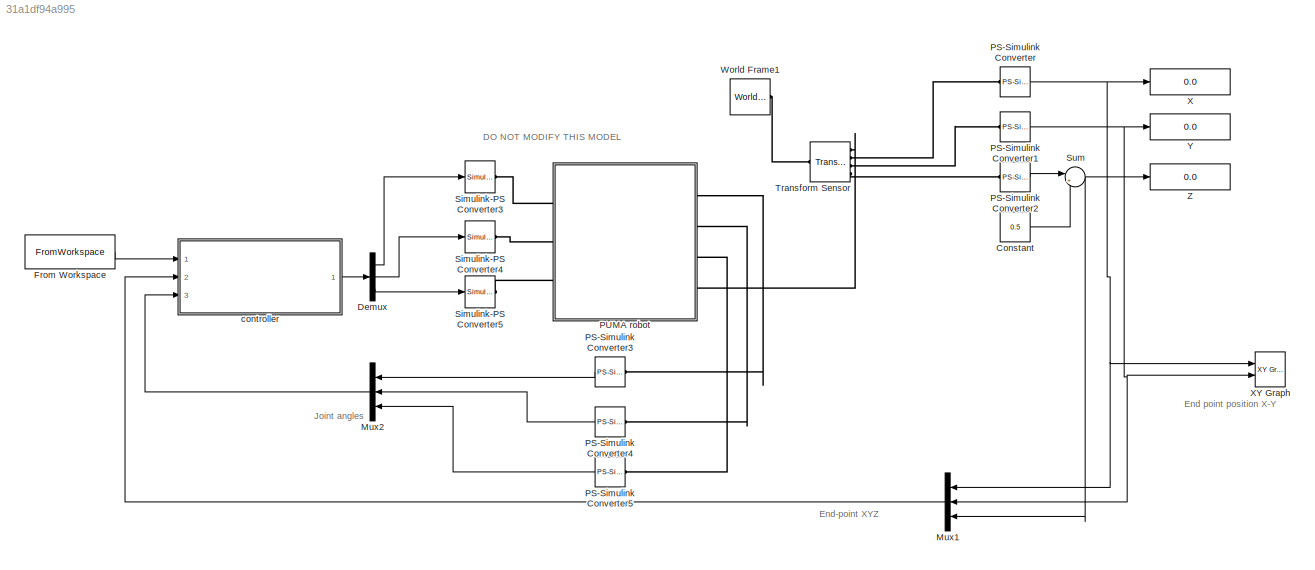
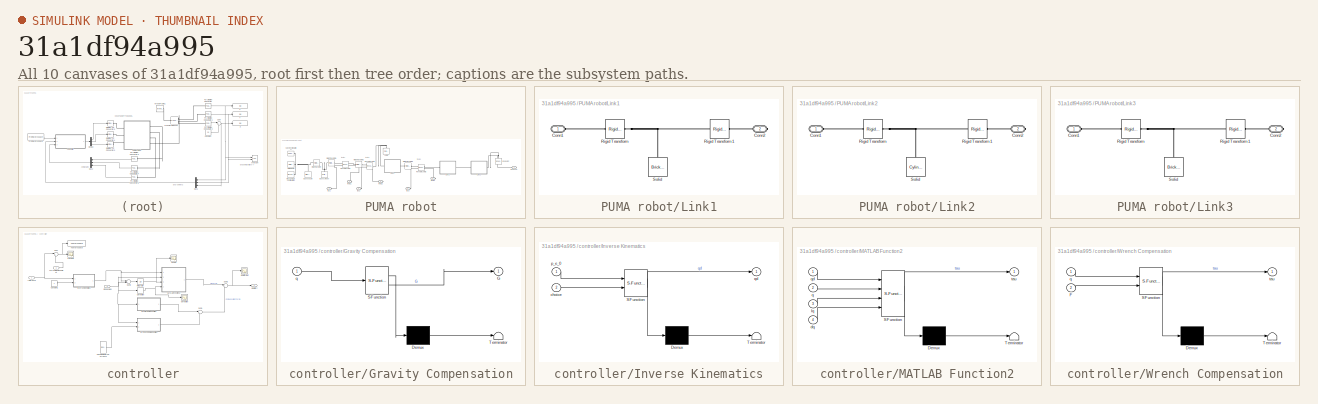
[diagram: thumbnail index - all 10 canvases of the model, root first then tree order]
MODEL slx_31a1df94a995
KIND model
CONFIG AbsTol = auto
CONFIG EnableMultiTasking = on
CONFIG FixedStep = 0.001
CONFIG MaxStep = 0.01
CONFIG MinStep = auto
CONFIG RelTol = 1e-3
CONFIG SampleTimeConstraint = Unconstrained
CONFIG Solver = ode5
CONFIG SolverName = ode5
CONFIG StartTime = 0.0
CONFIG StopTime = tf
BLOCK [Constant] Constant
  Value = 0.5
BLOCK [Demux] Demux
  Outputs = 3
  Ports = [1, 3]
BLOCK [FromWorkspace] From Workspace
  VariableName = xedyedzedsim
BLOCK [Mux] Mux1
  DisplayOption = bar
  Inputs = 3
  Ports = [3, 1]
BLOCK [Mux] Mux2
  DisplayOption = bar
  Inputs = 3
  Ports = [3, 1]
BLOCK [Reference] PS-Simulink Converter  REF=nesl_utility/PS-Simulink
Converter
  Ports = [0, 1, 0, 0, 0, 1]
  SourceBlock = nesl_utility/PS-Simulink\nConverter
  SourceProductBaseCode = SS
  SourceType = PS-Simulink\nConverter
BLOCK [Reference] PS-Simulink Converter1  REF=nesl_utility/PS-Simulink
Converter
  Ports = [0, 1, 0, 0, 0, 1]
  SourceBlock = nesl_utility/PS-Simulink\nConverter
  SourceProductBaseCode = SS
  SourceType = PS-Simulink\nConverter
BLOCK [Reference] PS-Simulink Converter2  REF=nesl_utility/PS-Simulink
Converter
  Ports = [0, 1, 0, 0, 0, 1]
  SourceBlock = nesl_utility/PS-Simulink\nConverter
  SourceProductBaseCode = SS
  SourceType = PS-Simulink\nConverter
BLOCK [Reference] PS-Simulink Converter3  REF=nesl_utility/PS-Simulink
Converter
  Ports = [0, 1, 0, 0, 0, 1]
  SourceBlock = nesl_utility/PS-Simulink\nConverter
  SourceProductBaseCode = SS
  SourceType = PS-Simulink\nConverter
BLOCK [Reference] PS-Simulink Converter4  REF=nesl_utility/PS-Simulink
Converter
  Ports = [0, 1, 0, 0, 0, 1]
  SourceBlock = nesl_utility/PS-Simulink\nConverter
  SourceProductBaseCode = SS
  SourceType = PS-Simulink\nConverter
BLOCK [Reference] PS-Simulink Converter5  REF=nesl_utility/PS-Simulink
Converter
  Ports = [0, 1, 0, 0, 0, 1]
  SourceBlock = nesl_utility/PS-Simulink\nConverter
  SourceProductBaseCode = SS
  SourceType = PS-Simulink\nConverter
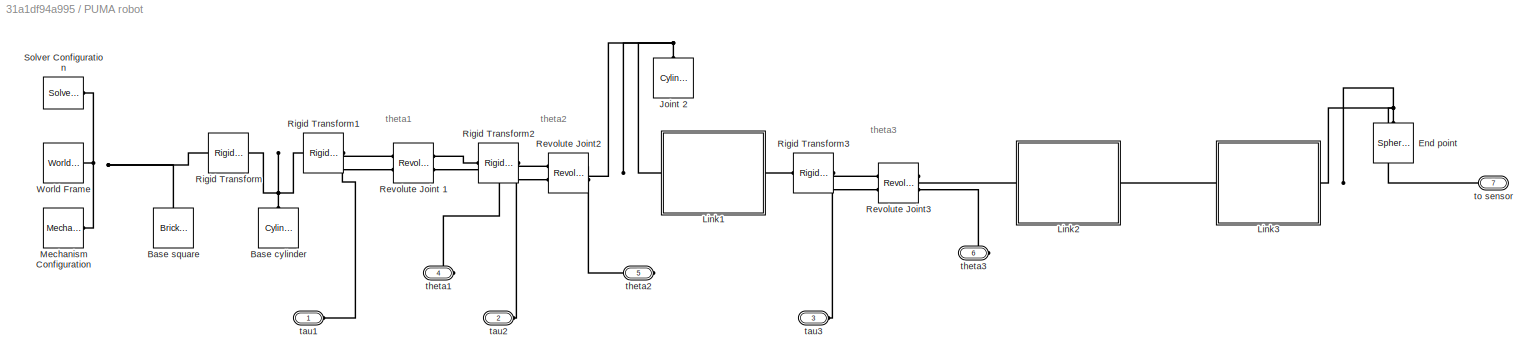
BLOCK [SubSystem] PUMA robot
  Ports = [0, 0, 0, 0, 0, 3, 4]
  RequestExecContextInheritance = off
BLOCK [Reference] PUMA robot/Base cylinder  REF=sm_lib/Body Elements/Cylindrical Solid
  NameLocation = right
  Ports = [0, 0, 0, 0, 0, 0, 1]
  SourceBlock = sm_lib/Body Elements/Cylindrical Solid
  SourceProductBaseCode = MS
  SourceType = Cylindrical Solid
BLOCK [Reference] PUMA robot/Base square  REF=sm_lib/Body Elements/Brick Solid
  NameLocation = right
  Ports = [0, 0, 0, 0, 0, 0, 1]
  SourceBlock = sm_lib/Body Elements/Brick Solid
  SourceProductBaseCode = MS
  SourceType = Brick Solid
BLOCK [Reference] PUMA robot/End point  REF=sm_lib/Body Elements/Spherical Solid
  NameLocation = right
  Ports = [0, 0, 0, 0, 0, 0, 1]
  SourceBlock = sm_lib/Body Elements/Spherical Solid
  SourceProductBaseCode = MS
  SourceType = Spherical Solid
BLOCK [Reference] PUMA robot/Joint 2  REF=sm_lib/Body Elements/Cylindrical Solid
  NameLocation = right
  Ports = [0, 0, 0, 0, 0, 0, 1]
  SourceBlock = sm_lib/Body Elements/Cylindrical Solid
  SourceProductBaseCode = MS
  SourceType = Cylindrical Solid
BLOCK [SubSystem] PUMA robot/Link1
  Ports = [0, 0, 0, 0, 0, 1, 1]
  RequestExecContextInheritance = off
BLOCK [PMIOPort] PUMA robot/Link1/Conn1
  Side = Left
BLOCK [PMIOPort] PUMA robot/Link1/Conn2
  Port = 2
  Side = Right
BLOCK [Reference] PUMA robot/Link1/Rigid Transform  REF=sm_lib/Frames and
Transforms/Rigid
Transform
  Ports = [0, 0, 0, 0, 0, 1, 1]
  SourceBlock = sm_lib/Frames and\nTransforms/Rigid\nTransform
  SourceProductBaseCode = MS
  SourceType = Rigid\nTransform
BLOCK [Reference] PUMA robot/Link1/Rigid Transform1  REF=sm_lib/Frames and
Transforms/Rigid
Transform
  Ports = [0, 0, 0, 0, 0, 1, 1]
  SourceBlock = sm_lib/Frames and\nTransforms/Rigid\nTransform
  SourceProductBaseCode = MS
  SourceType = Rigid\nTransform
BLOCK [Reference] PUMA robot/Link1/Solid  REF=sm_lib/Body Elements/Brick Solid
  NameLocation = right
  Ports = [0, 0, 0, 0, 0, 0, 1]
  SourceBlock = sm_lib/Body Elements/Brick Solid
  SourceProductBaseCode = MS
  SourceType = Brick Solid
BLOCK [SubSystem] PUMA robot/Link2
  Ports = [0, 0, 0, 0, 0, 1, 1]
  RequestExecContextInheritance = off
BLOCK [PMIOPort] PUMA robot/Link2/Conn1
  Side = Left
BLOCK [PMIOPort] PUMA robot/Link2/Conn2
  Port = 2
  Side = Right
BLOCK [Reference] PUMA robot/Link2/Rigid Transform  REF=sm_lib/Frames and
Transforms/Rigid
Transform
  Ports = [0, 0, 0, 0, 0, 1, 1]
  SourceBlock = sm_lib/Frames and\nTransforms/Rigid\nTransform
  SourceProductBaseCode = MS
  SourceType = Rigid\nTransform
BLOCK [Reference] PUMA robot/Link2/Rigid Transform1  REF=sm_lib/Frames and
Transforms/Rigid
Transform
  Ports = [0, 0, 0, 0, 0, 1, 1]
  SourceBlock = sm_lib/Frames and\nTransforms/Rigid\nTransform
  SourceProductBaseCode = MS
  SourceType = Rigid\nTransform
BLOCK [Reference] PUMA robot/Link2/Solid  REF=sm_lib/Body Elements/Cylindrical Solid
  NameLocation = right
  Ports = [0, 0, 0, 0, 0, 0, 1]
  SourceBlock = sm_lib/Body Elements/Cylindrical Solid
  SourceProductBaseCode = MS
  SourceType = Cylindrical Solid
BLOCK [SubSystem] PUMA robot/Link3
  Ports = [0, 0, 0, 0, 0, 1, 1]
  RequestExecContextInheritance = off
BLOCK [PMIOPort] PUMA robot/Link3/Conn1
  Side = Left
BLOCK [PMIOPort] PUMA robot/Link3/Conn2
  Port = 2
  Side = Right
BLOCK [Reference] PUMA robot/Link3/Rigid Transform  REF=sm_lib/Frames and
Transforms/Rigid
Transform
  Ports = [0, 0, 0, 0, 0, 1, 1]
  SourceBlock = sm_lib/Frames and\nTransforms/Rigid\nTransform
  SourceProductBaseCode = MS
  SourceType = Rigid\nTransform
BLOCK [Reference] PUMA robot/Link3/Rigid Transform1  REF=sm_lib/Frames and
Transforms/Rigid
Transform
  Ports = [0, 0, 0, 0, 0, 1, 1]
  SourceBlock = sm_lib/Frames and\nTransforms/Rigid\nTransform
  SourceProductBaseCode = MS
  SourceType = Rigid\nTransform
BLOCK [Reference] PUMA robot/Link3/Solid  REF=sm_lib/Body Elements/Brick Solid
  NameLocation = right
  Ports = [0, 0, 0, 0, 0, 0, 1]
  SourceBlock = sm_lib/Body Elements/Brick Solid
  SourceProductBaseCode = MS
  SourceType = Brick Solid
BLOCK [Reference] PUMA robot/Mechanism Configuration  REF=sm_lib/Utilities/Mechanism
Configuration
  Ports = [0, 0, 0, 0, 0, 0, 1]
  SourceBlock = sm_lib/Utilities/Mechanism\nConfiguration
  SourceProductBaseCode = MS
  SourceType = Mechanism\nConfiguration
BLOCK [Reference] PUMA robot/Revolute Joint 1  REF=sm_lib/Joints/Revolute Joint
  Ports = [0, 0, 0, 0, 0, 2, 2]
  SourceBlock = sm_lib/Joints/Revolute Joint
  SourceProductBaseCode = MS
  SourceType = Revolute Joint
BLOCK [Reference] PUMA robot/Revolute Joint2  REF=sm_lib/Joints/Revolute Joint
  Ports = [0, 0, 0, 0, 0, 2, 2]
  SourceBlock = sm_lib/Joints/Revolute Joint
  SourceProductBaseCode = MS
  SourceType = Revolute Joint
BLOCK [Reference] PUMA robot/Revolute Joint3  REF=sm_lib/Joints/Revolute Joint
  Ports = [0, 0, 0, 0, 0, 2, 2]
  SourceBlock = sm_lib/Joints/Revolute Joint
  SourceProductBaseCode = MS
  SourceType = Revolute Joint
BLOCK [Reference] PUMA robot/Rigid Transform  REF=sm_lib/Frames and
Transforms/Rigid
Transform
  Ports = [0, 0, 0, 0, 0, 1, 1]
  SourceBlock = sm_lib/Frames and\nTransforms/Rigid\nTransform
  SourceProductBaseCode = MS
  SourceType = Rigid\nTransform
BLOCK [Reference] PUMA robot/Rigid Transform1  REF=sm_lib/Frames and
Transforms/Rigid
Transform
  Ports = [0, 0, 0, 0, 0, 1, 1]
  SourceBlock = sm_lib/Frames and\nTransforms/Rigid\nTransform
  SourceProductBaseCode = MS
  SourceType = Rigid\nTransform
BLOCK [Reference] PUMA robot/Rigid Transform2  REF=sm_lib/Frames and
Transforms/Rigid
Transform
  Ports = [0, 0, 0, 0, 0, 1, 1]
  SourceBlock = sm_lib/Frames and\nTransforms/Rigid\nTransform
  SourceProductBaseCode = MS
  SourceType = Rigid\nTransform
BLOCK [Reference] PUMA robot/Rigid Transform3  REF=sm_lib/Frames and
Transforms/Rigid
Transform
  Ports = [0, 0, 0, 0, 0, 1, 1]
  SourceBlock = sm_lib/Frames and\nTransforms/Rigid\nTransform
  SourceProductBaseCode = MS
  SourceType = Rigid\nTransform
BLOCK [Reference] PUMA robot/Solver Configuration  REF=nesl_utility/Solver
Configuration
  Ports = [0, 0, 0, 0, 0, 0, 1]
  SourceBlock = nesl_utility/Solver\nConfiguration
  SourceProductBaseCode = SS
  SourceType = Solver\nConfiguration
BLOCK [Reference] PUMA robot/World Frame  REF=sm_lib/Frames and
Transforms/World Frame
  Ports = [0, 0, 0, 0, 0, 0, 1]
  SourceBlock = sm_lib/Frames and\nTransforms/World Frame
  SourceProductBaseCode = MS
  SourceType = World Frame
BLOCK [PMIOPort] PUMA robot/tau1
  Side = Left
BLOCK [PMIOPort] PUMA robot/tau2
  Port = 2
  Side = Left
BLOCK [PMIOPort] PUMA robot/tau3
  Port = 3
  Side = Left
BLOCK [PMIOPort] PUMA robot/theta1
  Port = 4
  Side = Right
BLOCK [PMIOPort] PUMA robot/theta2
  Port = 5
  Side = Right
BLOCK [PMIOPort] PUMA robot/theta3
  Port = 6
  Side = Right
BLOCK [PMIOPort] PUMA robot/to sensor
  Port = 7
  Side = Right
BLOCK [Reference] Simulink-PS Converter3  REF=nesl_utility/Simulink-PS
Converter
  Ports = [1, 0, 0, 0, 0, 0, 1]
  SourceBlock = nesl_utility/Simulink-PS\nConverter
  SourceProductBaseCode = SS
  SourceType = Simulink-PS\nConverter
BLOCK [Reference] Simulink-PS Converter4  REF=nesl_utility/Simulink-PS
Converter
  Ports = [1, 0, 0, 0, 0, 0, 1]
  SourceBlock = nesl_utility/Simulink-PS\nConverter
  SourceProductBaseCode = SS
  SourceType = Simulink-PS\nConverter
BLOCK [Reference] Simulink-PS Converter5  REF=nesl_utility/Simulink-PS
Converter
  Ports = [1, 0, 0, 0, 0, 0, 1]
  SourceBlock = nesl_utility/Simulink-PS\nConverter
  SourceProductBaseCode = SS
  SourceType = Simulink-PS\nConverter
BLOCK [Sum] Sum
  Inputs = |+-
  Ports = [2, 1]
BLOCK [Reference] Transform Sensor  REF=sm_lib/Frames and
Transforms/Transform
Sensor
  Ports = [0, 0, 0, 0, 0, 1, 4]
  SourceBlock = sm_lib/Frames and\nTransforms/Transform\nSensor
  SourceProductBaseCode = MS
  SourceType = Transform\nSensor
BLOCK [Reference] World Frame1  REF=sm_lib/Frames and
Transforms/World Frame
  Ports = [0, 0, 0, 0, 0, 0, 1]
  SourceBlock = sm_lib/Frames and\nTransforms/World Frame
  SourceProductBaseCode = MS
  SourceType = World Frame
BLOCK [Display] X
  Decimation = 1
  Ports = [1]
BLOCK [Reference] XY Graph  REF=simulink/Sinks/XY Graph
  Ports = [2]
  SourceBlock = simulink/Sinks/XY Graph
  SourceProductBaseCode = SL
  SourceType = XY scope.
BLOCK [Display] Y
  Decimation = 1
  Ports = [1]
BLOCK [Display] Z
  Decimation = 1
  Ports = [1]
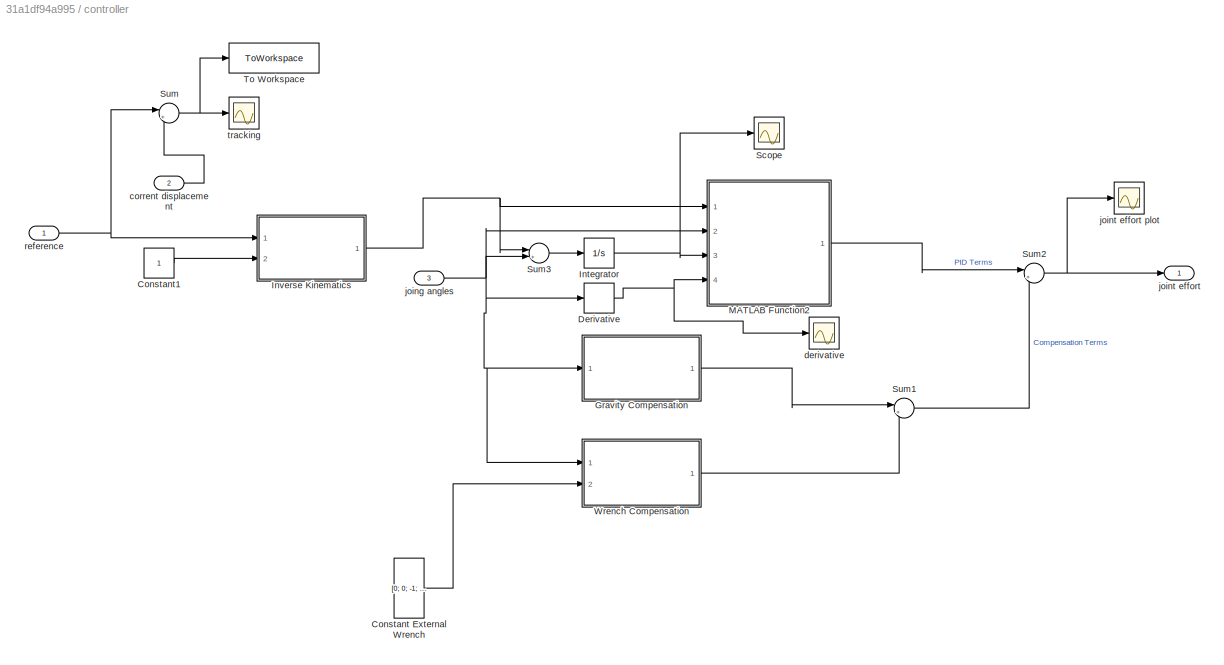
BLOCK [SubSystem] controller
  Ports = [3, 1]
  RequestExecContextInheritance = off
BLOCK [Constant] controller/Constant External Wrench
  Value = [0; 0; -1; 0; 1; 0]
BLOCK [Constant] controller/Constant1
BLOCK [Derivative] controller/Derivative
BLOCK [SubSystem] controller/Gravity Compensation
  ErrorFcn = Stateflow.Translate.translate
  PermitHierarchicalResolution = ExplicitOnly
  Ports = [1, 1]
  RequestExecContextInheritance = off
  SFBlockType = MATLAB Function
  TreatAsAtomicUnit = on
BLOCK [Demux] controller/Gravity Compensation/ Demux 
  Outputs = 1
  Ports = [1, 1]
BLOCK [S-Function] controller/Gravity Compensation/ SFunction 
  EnableBusSupport = on
  FunctionName = sf_sfun
  PortCounts = [1 2]
  Ports = [1, 2]
  SFcnIsStateOwnerBlock = off
  SFunctionDeploymentMode = off
  Tag = Stateflow S-Function 2
BLOCK [Terminator] controller/Gravity Compensation/ Terminator 
BLOCK [Outport] controller/Gravity Compensation/G
BLOCK [Inport] controller/Gravity Compensation/q
BLOCK [Integrator] controller/Integrator
  Ports = [1, 1]
BLOCK [SubSystem] controller/Inverse Kinematics
  ErrorFcn = Stateflow.Translate.translate
  PermitHierarchicalResolution = ExplicitOnly
  Ports = [2, 1]
  RequestExecContextInheritance = off
  SFBlockType = MATLAB Function
  TreatAsAtomicUnit = on
BLOCK [Demux] controller/Inverse Kinematics/ Demux 
  Outputs = 1
  Ports = [1, 1]
BLOCK [S-Function] controller/Inverse Kinematics/ SFunction 
  EnableBusSupport = on
  FunctionName = sf_sfun
  PortCounts = [2 2]
  Ports = [2, 2]
  SFcnIsStateOwnerBlock = off
  SFunctionDeploymentMode = off
  Tag = Stateflow S-Function 1
BLOCK [Terminator] controller/Inverse Kinematics/ Terminator 
BLOCK [Inport] controller/Inverse Kinematics/choice
  Port = 2
BLOCK [Inport] controller/Inverse Kinematics/p_e_0
BLOCK [Outport] controller/Inverse Kinematics/qd
BLOCK [SubSystem] controller/MATLAB Function2
  ErrorFcn = Stateflow.Translate.translate
  PermitHierarchicalResolution = ExplicitOnly
  Ports = [4, 1]
  RequestExecContextInheritance = off
  SFBlockType = MATLAB Function
  TreatAsAtomicUnit = on
BLOCK [Demux] controller/MATLAB Function2/ Demux 
  Outputs = 1
  Ports = [1, 1]
BLOCK [S-Function] controller/MATLAB Function2/ SFunction 
  EnableBusSupport = on
  FunctionName = sf_sfun
  PortCounts = [4 2]
  Ports = [4, 2]
  SFcnIsStateOwnerBlock = off
  SFunctionDeploymentMode = off
  Tag = Stateflow S-Function 5
BLOCK [Terminator] controller/MATLAB Function2/ Terminator 
BLOCK [Inport] controller/MATLAB Function2/Iq
  Port = 3
BLOCK [Inport] controller/MATLAB Function2/dq
  Port = 4
BLOCK [Inport] controller/MATLAB Function2/q
  Port = 2
BLOCK [Inport] controller/MATLAB Function2/qd
BLOCK [Outport] controller/MATLAB Function2/tau
BLOCK [Scope] controller/Scope
  Floating = off
  NumInputPorts = 1
  Ports = [1]
  ScopeSpecificationString = Simulink.scopes.TimeScopeBlockCfg('CurrentConfiguration', extmgr.ConfigurationSet(extmgr.Configuration('Core','General UI',true),extmgr.Configuration('Core','Source UI',true),extmgr.Configuration('Sources','WiredSimulink',true,'DataLoggingVariableName','ScopeData1'),extmgr.Configuration('Visuals','Time Domain',true,'SerializedDisplays',{struct('MinYLimReal','-0.02127','MaxYLimReal','0.02293','YLab...<+1413ch>
BLOCK [Sum] controller/Sum
  Inputs = |+-
  Ports = [2, 1]
BLOCK [Sum] controller/Sum1
  Inputs = |++
  Ports = [2, 1]
BLOCK [Sum] controller/Sum2
  Inputs = |++
  Ports = [2, 1]
BLOCK [Sum] controller/Sum3
  Inputs = |+-
  Ports = [2, 1]
BLOCK [ToWorkspace] controller/To Workspace
  FixptAsFi = on
  MaxDataPoints = inf
  Ports = [1]
  SampleTime = -1
  SaveFormat = Timeseries
  VariableName = errorTerm
BLOCK [SubSystem] controller/Wrench Compensation
  ErrorFcn = Stateflow.Translate.translate
  PermitHierarchicalResolution = ExplicitOnly
  Ports = [2, 1]
  RequestExecContextInheritance = off
  SFBlockType = MATLAB Function
  TreatAsAtomicUnit = on
BLOCK [Demux] controller/Wrench Compensation/ Demux 
  Outputs = 1
  Ports = [1, 1]
BLOCK [S-Function] controller/Wrench Compensation/ SFunction 
  EnableBusSupport = on
  FunctionName = sf_sfun
  PortCounts = [2 2]
  Ports = [2, 2]
  SFcnIsStateOwnerBlock = off
  SFunctionDeploymentMode = off
  Tag = Stateflow S-Function 4
BLOCK [Terminator] controller/Wrench Compensation/ Terminator 
BLOCK [Inport] controller/Wrench Compensation/F
  Port = 2
BLOCK [Inport] controller/Wrench Compensation/q
BLOCK [Outport] controller/Wrench Compensation/tau
BLOCK [Inport] controller/corrent displacement
  Port = 2
BLOCK [Scope] controller/derivative
  Floating = off
  NumInputPorts = 1
  Ports = [1]
  ScopeSpecificationString = Simulink.scopes.TimeScopeBlockCfg('CurrentConfiguration', extmgr.ConfigurationSet(extmgr.Configuration('Core','General UI',true),extmgr.Configuration('Core','Source UI',true),extmgr.Configuration('Sources','WiredSimulink',true,'DataLoggingVariableName','ScopeData1'),extmgr.Configuration('Visuals','Time Domain',true,'SerializedDisplays',{struct('MinYLimReal','-16.30946','MaxYLimReal','29.09693','YL...<+1395ch>
BLOCK [Inport] controller/joing angles
  Port = 3
BLOCK [Outport] controller/joint effort
  VectorParamsAs1DForOutWhenUnconnected = off
BLOCK [Scope] controller/joint effort plot 
  Floating = off
  NumInputPorts = 1
  Ports = [1]
  ScopeSpecificationString = Simulink.scopes.TimeScopeBlockCfg('CurrentConfiguration', extmgr.ConfigurationSet(extmgr.Configuration('Core','General UI',true),extmgr.Configuration('Core','Source UI',true),extmgr.Configuration('Sources','WiredSimulink',true,'DataLoggingVariableName','ScopeData1'),extmgr.Configuration('Visuals','Time Domain',true,'SerializedDisplays',{struct('MinYLimReal','-221.96048','MaxYLimReal','272.54867','...<+1474ch>
BLOCK [Inport] controller/reference
BLOCK [Scope] controller/tracking
  Floating = off
  NumInputPorts = 1
  Ports = [1]
  ScopeSpecificationString = Simulink.scopes.TimeScopeBlockCfg('CurrentConfiguration', extmgr.ConfigurationSet(extmgr.Configuration('Core','General UI',true),extmgr.Configuration('Core','Source UI',true),extmgr.Configuration('Sources','WiredSimulink',true,'DataLoggingVariableName','ScopeData2'),extmgr.Configuration('Visuals','Time Domain',true,'SerializedDisplays',{struct('MinYLimReal','-0.05564','MaxYLimReal','0.05526','YLab...<+1435ch>
ANNOTATION (root): DO NOT MODIFY THIS MODEL
ANNOTATION (root): End point position X-Y
ANNOTATION (root): End-point XYZ
ANNOTATION (root): Joint angles
ANNOTATION PUMA robot: theta1
ANNOTATION PUMA robot: theta2
ANNOTATION PUMA robot: theta3
LINE Constant:1 -> Sum:2
LINE Demux:1 -> Simulink-PS Converter3:1
LINE Demux:2 -> Simulink-PS Converter4:1
LINE Demux:3 -> Simulink-PS Converter5:1
LINE From Workspace:1 -> controller:1
LINE Mux1:1 -> controller:2
LINE Mux2:1 -> controller:3
NET PS-Simulink Converter1:1 -> Mux1:2, XY Graph:2, Y:1
LINE PS-Simulink Converter2:1 -> Sum:1
LINE PS-Simulink Converter3:1 -> Mux2:1
LINE PS-Simulink Converter4:1 -> Mux2:2
LINE PS-Simulink Converter5:1 -> Mux2:3
NET PS-Simulink Converter:1 -> Mux1:1, X:1, XY Graph:1
NET Sum:1 -> Mux1:3, Z:1
LINE controller/Constant External Wrench:1 -> controller/Wrench Compensation:2
LINE controller/Constant1:1 -> controller/Inverse Kinematics:2
NET controller/Derivative:1 -> controller/MATLAB Function2:4, controller/derivative:1
LINE controller/Gravity Compensation:1 -> controller/Sum1:1
NET controller/Integrator:1 -> controller/MATLAB Function2:3, controller/Scope:1
NET controller/Inverse Kinematics:1 -> controller/MATLAB Function2:1, controller/Sum3:1
LINE controller/MATLAB Function2:1 -> controller/Sum2:1
LINE controller/Sum1:1 -> controller/Sum2:2
NET controller/Sum2:1 -> controller/joint effort plot :1, controller/joint effort:1
LINE controller/Sum3:1 -> controller/Integrator:1
NET controller/Sum:1 -> controller/To Workspace:1, controller/tracking:1
LINE controller/Wrench Compensation:1 -> controller/Sum1:2
LINE controller/corrent displacement:1 -> controller/Sum:2
NET controller/joing angles:1 -> controller/Derivative:1, controller/Gravity Compensation:1, controller/MATLAB Function2:2, controller/Sum3:2, controller/Wrench Compensation:1
NET controller/reference:1 -> controller/Inverse Kinematics:1, controller/Sum:1
LINE controller:1 -> Demux:1
PLINE PS-Simulink Converter1:LConn1 -- Transform Sensor:RConn3
PLINE PS-Simulink Converter2:LConn1 -- Transform Sensor:RConn4
PLINE PS-Simulink Converter3:LConn1 -- PUMA robot:RConn1
PLINE PS-Simulink Converter4:LConn1 -- PUMA robot:RConn2
PLINE PS-Simulink Converter5:LConn1 -- PUMA robot:RConn3
PLINE PS-Simulink Converter:LConn1 -- Transform Sensor:RConn2
PNET net1: PUMA robot/Base cylinder:RConn1 -- PUMA robot/Rigid Transform1:LConn1 -- PUMA robot/Rigid Transform:RConn1
PNET net2: PUMA robot/Base square:RConn1 -- PUMA robot/Mechanism Configuration:RConn1 -- PUMA robot/Rigid Transform:LConn1 -- PUMA robot/Solver Configuration:RConn1 -- PUMA robot/World Frame:RConn1
PNET net3: PUMA robot/End point:RConn1 -- PUMA robot/Link3:RConn1 -- PUMA robot/to sensor:RConn1
PNET net4: PUMA robot/Joint 2:RConn1 -- PUMA robot/Link1:LConn1 -- PUMA robot/Revolute Joint2:RConn1
PLINE PUMA robot/Link1/Conn1:RConn1 -- PUMA robot/Link1/Rigid Transform:LConn1
PLINE PUMA robot/Link1/Conn2:RConn1 -- PUMA robot/Link1/Rigid Transform1:RConn1
PNET net5: PUMA robot/Link1/Rigid Transform1:LConn1 -- PUMA robot/Link1/Rigid Transform:RConn1 -- PUMA robot/Link1/Solid:RConn1
PLINE PUMA robot/Link1:RConn1 -- PUMA robot/Rigid Transform3:LConn1
PLINE PUMA robot/Link2/Conn1:RConn1 -- PUMA robot/Link2/Rigid Transform:LConn1
PLINE PUMA robot/Link2/Conn2:RConn1 -- PUMA robot/Link2/Rigid Transform1:RConn1
PNET net6: PUMA robot/Link2/Rigid Transform1:LConn1 -- PUMA robot/Link2/Rigid Transform:RConn1 -- PUMA robot/Link2/Solid:RConn1
PLINE PUMA robot/Link2:LConn1 -- PUMA robot/Revolute Joint3:RConn1
PLINE PUMA robot/Link2:RConn1 -- PUMA robot/Link3:LConn1
PLINE PUMA robot/Link3/Conn1:RConn1 -- PUMA robot/Link3/Rigid Transform:LConn1
PLINE PUMA robot/Link3/Conn2:RConn1 -- PUMA robot/Link3/Rigid Transform1:RConn1
PNET net7: PUMA robot/Link3/Rigid Transform1:LConn1 -- PUMA robot/Link3/Rigid Transform:RConn1 -- PUMA robot/Link3/Solid:RConn1
PLINE PUMA robot/Revolute Joint 1:LConn1 -- PUMA robot/Rigid Transform1:RConn1
PLINE PUMA robot/Revolute Joint 1:LConn2 -- PUMA robot/tau1:RConn1
PLINE PUMA robot/Revolute Joint 1:RConn1 -- PUMA robot/Rigid Transform2:LConn1
PLINE PUMA robot/Revolute Joint 1:RConn2 -- PUMA robot/theta1:RConn1
PLINE PUMA robot/Revolute Joint2:LConn1 -- PUMA robot/Rigid Transform2:RConn1
PLINE PUMA robot/Revolute Joint2:LConn2 -- PUMA robot/tau2:RConn1
PLINE PUMA robot/Revolute Joint2:RConn2 -- PUMA robot/theta2:RConn1
PLINE PUMA robot/Revolute Joint3:LConn1 -- PUMA robot/Rigid Transform3:RConn1
PLINE PUMA robot/Revolute Joint3:LConn2 -- PUMA robot/tau3:RConn1
PLINE PUMA robot/Revolute Joint3:RConn2 -- PUMA robot/theta3:RConn1
PLINE PUMA robot:LConn1 -- Simulink-PS Converter3:RConn1
PLINE PUMA robot:LConn2 -- Simulink-PS Converter4:RConn1
PLINE PUMA robot:LConn3 -- Simulink-PS Converter5:RConn1
PLINE PUMA robot:RConn4 -- Transform Sensor:RConn1
PLINE Transform Sensor:LConn1 -- World Frame1:RConn1
note: NET lines group one-source signal fan-out (src -> all destinations, sorted); 1:1 wires keep LINE; PNET lines group multi-terminal physical nets as a canonical sorted terminal list (undirected conserving connections); 2-terminal nets keep the pairwise PLINE form
CHART controller/Inverse Kinematics states=1 transitions=1
  STATE_LABEL 'eML_blk_kernel()'
  STATE_LABEL 'SCRIPT:\nfunction qd  = IK_puma(p_e_0, choice)\n    la = 1;\n    lb = 0.2;\n    lc = 1;\n    % Initialize output\n    q = zeros(3, 4);\n    rx = p_e_0(1);\n    ry = p_e_0(2);\n    rz = p_e_0(3);\n    % Find theta1\n    theta1_1 = atan2(-rx, ry) + atan2(sqrt(rx^2 + ry^2 - lb^2), lb);\n    theta1_2 = atan2(-rx, ry) - atan2(sqrt(rx^2 + ry^2 - lb^2), lb);\n    % Find theta3\n    k = sqrt((rx^2 + ry^2 + rz^2 - lb^2 ...<+1222ch>'
CHART controller/Gravity Compensation states=1 transitions=1
  STATE_LABEL 'eML_blk_kernel()'
  STATE_LABEL 'SCRIPT:\nfunction G = gravityVector(q)\n    G = zeros(3, 1);\n    G(2) = -4.905 * (76.042 * cos(q(2)) + 23.462 * cos(q(2) + q(3)));\n    G(3) = -115.081 * cos(q(2) + q(3));\nend\n'
CHART controller/Wrench Compensation states=1 transitions=1
  STATE_LABEL 'eML_blk_kernel()'
  STATE_LABEL 'SCRIPT:\nfunction tau = wrenchComp(q, F)\n    % Find Jacobian\n    J = zeros(6, 3); % Determine Size\n    % Robot Parameters\n    la = 1;\n    lb = 0.2;\n    lc = 1;\n    % Configuration decomposition: input q is in RADIANS!!!!!!!!\n    o1 = rad2deg(q(1));\n    o2 = rad2deg(q(2));\n    o3 = rad2deg(q(3));\n    % HTMs\n    T01 = [rotz(o1), zeros(3, 1); zeros(1, 3), 1];\n    T12 = [rotx(-90) * rotz(o2), zeros(3, ...<+668ch>'
CHART controller/MATLAB Function2 states=1 transitions=1
  STATE_LABEL 'eML_blk_kernel()'
  STATE_LABEL 'SCRIPT:\nfunction tau = PID(qd, q, Iq, dq)\n    % Gains\n    Kp = diag([3000 * 10, 4000 * 10, 3000 * 10]);\n    KI = diag([1, 1, 1]) * 0;\n    Kd = diag([300 * 1.8 450 * 1.8 300 * 1.8]);\n    tau = Kp * (qd -q) + KI * Iq + Kd * (-dq);\nend\n'
CHART  states=0 transitions=0
CHART  states=0 transitions=0
CHART  states=0 transitions=0
CHART  states=0 transitions=0
